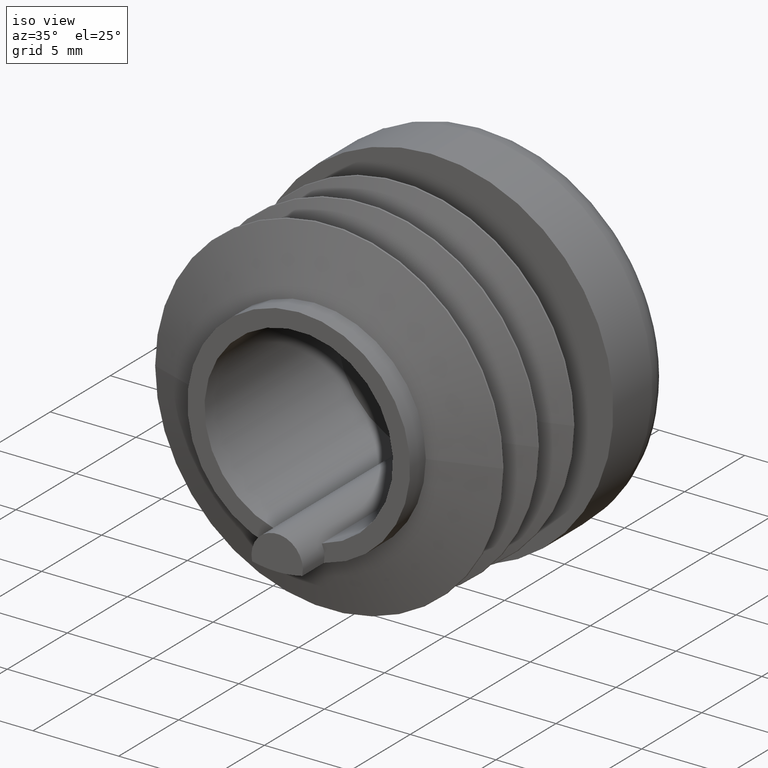
[diagram: clean part render]
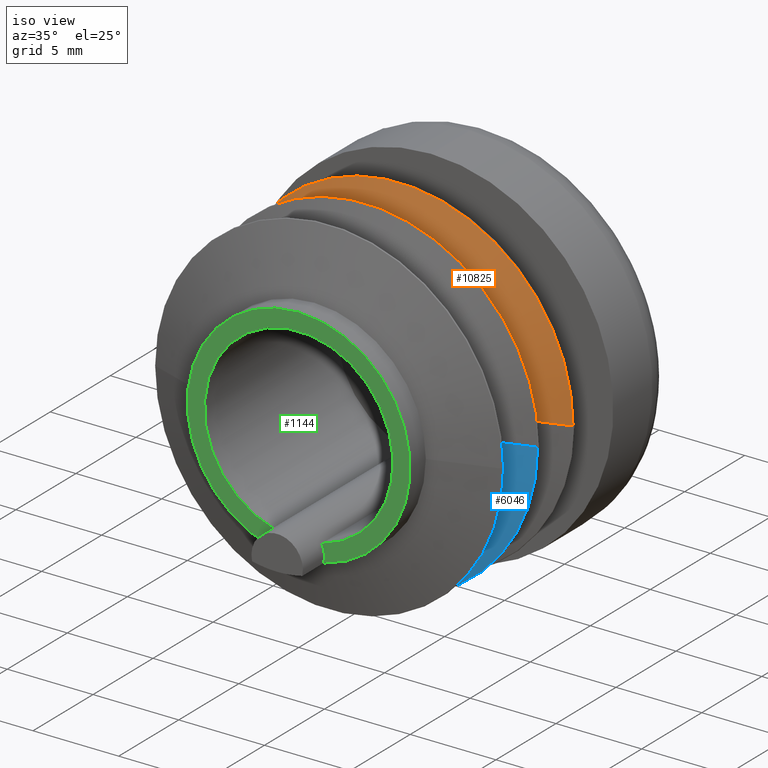
[diagram: same view with three faces highlighted in distinct colors, each labeled with its STEP entity id]
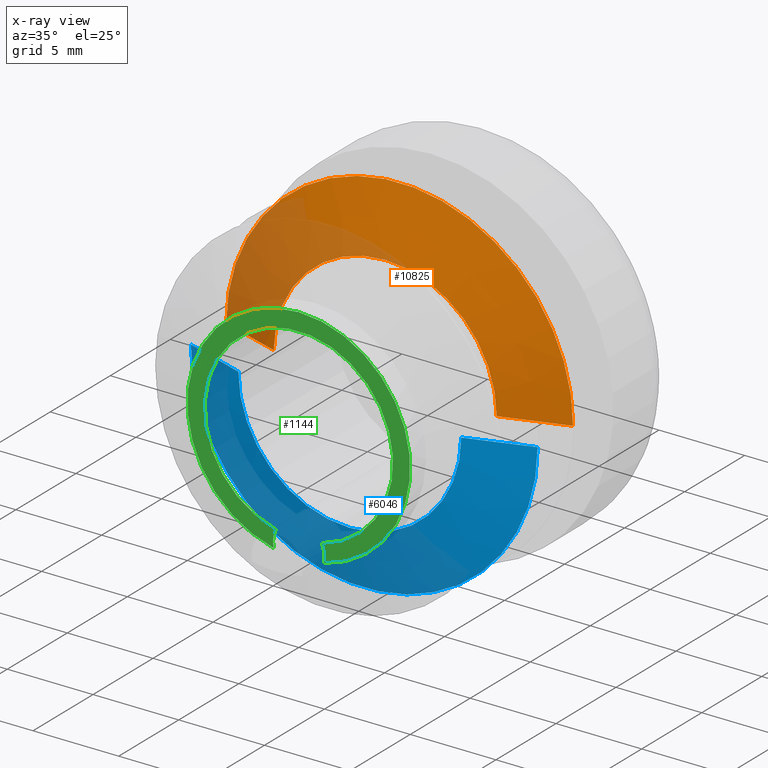
[diagram: x-ray of the same camera — body ghosted, the three highlighted faces saturated]
A machine part, iso view with three faces highlighted in distinct colors.
The next image is the same camera in x-ray (body ghosted, the three faces saturated) — at least one of them is partly hidden behind the body in this view.
Their STEP definitions:

[orange] entity #10825 — the highlighted conical surface has half-angle 71.604 deg.
#49 = EDGE_CURVE ( 'NONE', #6304, #2895, #9470, .T. ) ;
#243 = CIRCLE ( 'NONE', #8916, 6.499999999999999112 ) ;
#464 = ORIENTED_EDGE ( 'NONE', *, *, #9713, .T. ) ;
#1099 = ORIENTED_EDGE ( 'NONE', *, *, #10141, .T. ) ;
#1305 = VECTOR ( 'NONE', #4127, 1000.000000000000000 ) ;
#1764 = AXIS2_PLACEMENT_3D ( 'NONE', #4187, #3212, #5120 ) ;
#1971 = CARTESIAN_POINT ( 'NONE',  ( -7.541599691901261449E-14, 7.200000000000088107, 0.000000000000000000 ) ) ;
#1977 = CARTESIAN_POINT ( 'NONE',  ( 10.11577944472650792, 8.402555199187872859, 1.238825691786501583E-15 ) ) ;
#2106 = CARTESIAN_POINT ( 'NONE',  ( -8.801209402969033617E-14, 8.402555199187768054, 0.000000000000000000 ) ) ;
#2170 = AXIS2_PLACEMENT_3D ( 'NONE', #1971, #8227, #5613 ) ;
#2449 = EDGE_LOOP ( 'NONE', ( #5340, #1099, #8006, #4076, #464 ) ) ;
#2548 = CARTESIAN_POINT ( 'NONE',  ( -10.11577944472668200, 8.402555199187661472, 0.000000000000000000 ) ) ;
#2713 = DIRECTION ( 'NONE',  ( 1.000000000000000000, 1.046069980200573939E-14, 0.000000000000000000 ) ) ;
#2895 = VERTEX_POINT ( 'NONE', #3602 ) ;
#2972 = DIRECTION ( 'NONE',  ( -1.047444401652940164E-14, 1.000000000000000000, 0.000000000000000000 ) ) ;
#3003 = DIRECTION ( 'NONE',  ( 0.9488960162468903503, 0.3155888945301800197, 1.162062469020433147E-16 ) ) ;
#3212 = DIRECTION ( 'NONE',  ( -1.047444401652940164E-14, 1.000000000000000000, 0.000000000000000000 ) ) ;
#3223 = CARTESIAN_POINT ( 'NONE',  ( -6.500000000000150102, 7.200000000000045475, 0.000000000000000000 ) ) ;
#3602 = CARTESIAN_POINT ( 'NONE',  ( 6.499999999999923617, 7.200000000000155609, 1.017423055616140319E-15 ) ) ;
#3617 = CONICAL_SURFACE ( 'NONE', #1764, 6.500000000000074607, 1.249719126558173077 ) ;
#4076 = ORIENTED_EDGE ( 'NONE', *, *, #4111, .F. ) ;
#4111 = EDGE_CURVE ( 'NONE', #10255, #10398, #8905, .T. ) ;
#4127 = DIRECTION ( 'NONE',  ( -0.9488960162468970116, 0.3155888945301601467, 0.000000000000000000 ) ) ;
#4187 = CARTESIAN_POINT ( 'NONE',  ( -7.541599691901287954E-14, 7.200000000000113864, 0.000000000000000000 ) ) ;
#4803 = CIRCLE ( 'NONE', #8824, 10.11577944472659674 ) ;
#5120 = DIRECTION ( 'NONE',  ( -1.000000000000000000, -1.040834085586072266E-14, 0.000000000000000000 ) ) ;
#5340 = ORIENTED_EDGE ( 'NONE', *, *, #49, .T. ) ;
#5613 = DIRECTION ( 'NONE',  ( -1.000000000000000000, -1.040834085586084414E-14, 0.000000000000000000 ) ) ;
#5701 = FACE_OUTER_BOUND ( 'NONE', #2449, .T. ) ;
#6304 = VERTEX_POINT ( 'NONE', #8682 ) ;
#6596 = EDGE_CURVE ( 'NONE', #7333, #10398, #4803, .T. ) ;
#7229 = DIRECTION ( 'NONE',  ( 1.047444401652940164E-14, -1.000000000000000000, -0.000000000000000000 ) ) ;
#7333 = VERTEX_POINT ( 'NONE', #1977 ) ;
#7736 = CARTESIAN_POINT ( 'NONE',  ( -6.500000000000074607, 7.200000000000020606, 0.000000000000000000 ) ) ;
#8006 = ORIENTED_EDGE ( 'NONE', *, *, #6596, .T. ) ;
#8227 = DIRECTION ( 'NONE',  ( -1.047444401652940164E-14, 1.000000000000000000, 0.000000000000000000 ) ) ;
#8354 = CARTESIAN_POINT ( 'NONE',  ( -7.541599691901261449E-14, 7.200000000000088107, 0.000000000000000000 ) ) ;
#8682 = CARTESIAN_POINT ( 'NONE',  ( 7.960204194450690798E-16, 7.200000000000088107, 6.499999999999999112 ) ) ;
#8798 = VECTOR ( 'NONE', #3003, 1000.000000000000227 ) ;
#8824 = AXIS2_PLACEMENT_3D ( 'NONE', #2106, #7229, #2713 ) ;
#8905 = LINE ( 'NONE', #3223, #1305 ) ;
#8916 = AXIS2_PLACEMENT_3D ( 'NONE', #8354, #2972, #10231 ) ;
#9470 = CIRCLE ( 'NONE', #2170, 6.499999999999999112 ) ;
#9713 = EDGE_CURVE ( 'NONE', #10255, #6304, #243, .T. ) ;
#10138 = CARTESIAN_POINT ( 'NONE',  ( 6.499999999999999112, 7.200000000000181366, 7.960204194457887182E-16 ) ) ;
#10141 = EDGE_CURVE ( 'NONE', #2895, #7333, #10222, .T. ) ;
#10222 = LINE ( 'NONE', #10138, #8798 ) ;
#10231 = DIRECTION ( 'NONE',  ( -1.000000000000000000, -1.040834085586084414E-14, 0.000000000000000000 ) ) ;
#10255 = VERTEX_POINT ( 'NONE', #7736 ) ;
#10398 = VERTEX_POINT ( 'NONE', #2548 ) ;
#10825 = ADVANCED_FACE ( 'NONE', ( #5701 ), #3617, .T. ) ;

[blue] entity #6046 — the highlighted conical surface has half-angle 71.604 deg.
#54 = ORIENTED_EDGE ( 'NONE', *, *, #5526, .T. ) ;
#665 = VERTEX_POINT ( 'NONE', #5502 ) ;
#880 = DIRECTION ( 'NONE',  ( -1.000000000000000000, -1.040834085586084414E-14, 0.000000000000000000 ) ) ;
#1195 = DIRECTION ( 'NONE',  ( 1.047444401652940164E-14, -1.000000000000000000, -0.000000000000000000 ) ) ;
#1271 = FACE_OUTER_BOUND ( 'NONE', #2267, .T. ) ;
#1295 = VERTEX_POINT ( 'NONE', #9670 ) ;
#1876 = CIRCLE ( 'NONE', #10856, 10.11577944472659674 ) ;
#1985 = EDGE_CURVE ( 'NONE', #7666, #1295, #1876, .T. ) ;
#2267 = EDGE_LOOP ( 'NONE', ( #4062, #7797, #5302, #54, #5414 ) ) ;
#2823 = AXIS2_PLACEMENT_3D ( 'NONE', #10046, #4592, #9920 ) ;
#3125 = CIRCLE ( 'NONE', #2823, 6.499999999999999112 ) ;
#3765 = DIRECTION ( 'NONE',  ( -1.047444401652940164E-14, 1.000000000000000000, 0.000000000000000000 ) ) ;
#4062 = ORIENTED_EDGE ( 'NONE', *, *, #5498, .F. ) ;
#4430 = EDGE_CURVE ( 'NONE', #8213, #7742, #9306, .T. ) ;
#4434 = DIRECTION ( 'NONE',  ( -1.047444401652940164E-14, 1.000000000000000000, 0.000000000000000000 ) ) ;
#4592 = DIRECTION ( 'NONE',  ( -1.047444401652940164E-14, 1.000000000000000000, 0.000000000000000000 ) ) ;
#5302 = ORIENTED_EDGE ( 'NONE', *, *, #5979, .T. ) ;
#5414 = ORIENTED_EDGE ( 'NONE', *, *, #1985, .T. ) ;
#5436 = AXIS2_PLACEMENT_3D ( 'NONE', #7220, #3765, #6407 ) ;
#5484 = DIRECTION ( 'NONE',  ( 0.9488960162468905724, 0.3155888945301795756, 1.162062469020433393E-16 ) ) ;
#5498 = EDGE_CURVE ( 'NONE', #8213, #1295, #8187, .T. ) ;
#5502 = CARTESIAN_POINT ( 'NONE',  ( -6.500000000000042633, 4.249999999999929834, 0.000000000000000000 ) ) ;
#5526 = EDGE_CURVE ( 'NONE', #665, #7666, #10567, .T. ) ;
#5979 = EDGE_CURVE ( 'NONE', #7742, #665, #3125, .T. ) ;
#6046 = ADVANCED_FACE ( 'NONE', ( #1271 ), #10551, .T. ) ;
#6374 = CARTESIAN_POINT ( 'NONE',  ( -6.500000000000118128, 4.249999999999955591, 0.000000000000000000 ) ) ;
#6407 = DIRECTION ( 'NONE',  ( -1.000000000000000000, -1.040834085586072266E-14, 0.000000000000000000 ) ) ;
#7220 = CARTESIAN_POINT ( 'NONE',  ( -4.451638707025019325E-14, 4.250000000000023093, 0.000000000000000000 ) ) ;
#7666 = VERTEX_POINT ( 'NONE', #8182 ) ;
#7742 = VERTEX_POINT ( 'NONE', #8295 ) ;
#7797 = ORIENTED_EDGE ( 'NONE', *, *, #4430, .T. ) ;
#8182 = CARTESIAN_POINT ( 'NONE',  ( -10.11577944472665180, 5.452555199187569812, 0.000000000000000000 ) ) ;
#8187 = LINE ( 'NONE', #10886, #10858 ) ;
#8213 = VERTEX_POINT ( 'NONE', #10204 ) ;
#8295 = CARTESIAN_POINT ( 'NONE',  ( -7.087422195345027939E-28, 4.249999999999997335, -6.499999999999999112 ) ) ;
#8890 = CARTESIAN_POINT ( 'NONE',  ( -4.451638707024992819E-14, 4.249999999999997335, 0.000000000000000000 ) ) ;
#9306 = CIRCLE ( 'NONE', #10939, 6.499999999999999112 ) ;
#9670 = CARTESIAN_POINT ( 'NONE',  ( 10.11577944472653989, 5.452555199187781199, 1.238825691786501780E-15 ) ) ;
#9920 = DIRECTION ( 'NONE',  ( -1.000000000000000000, -1.040834085586084414E-14, 0.000000000000000000 ) ) ;
#10007 = VECTOR ( 'NONE', #10923, 1000.000000000000114 ) ;
#10046 = CARTESIAN_POINT ( 'NONE',  ( -4.451638707024992819E-14, 4.249999999999997335, 0.000000000000000000 ) ) ;
#10161 = CARTESIAN_POINT ( 'NONE',  ( -5.711248418092762463E-14, 5.452555199187675505, 0.000000000000000000 ) ) ;
#10204 = CARTESIAN_POINT ( 'NONE',  ( 6.499999999999954703, 4.250000000000065725, 1.017423055616140516E-15 ) ) ;
#10205 = DIRECTION ( 'NONE',  ( 1.000000000000000000, 1.046069980200573939E-14, 0.000000000000000000 ) ) ;
#10551 = CONICAL_SURFACE ( 'NONE', #5436, 6.500000000000074607, 1.249719126558173521 ) ;
#10567 = LINE ( 'NONE', #6374, #10007 ) ;
#10856 = AXIS2_PLACEMENT_3D ( 'NONE', #10161, #1195, #10205 ) ;
#10858 = VECTOR ( 'NONE', #5484, 1000.000000000000000 ) ;
#10886 = CARTESIAN_POINT ( 'NONE',  ( 6.500000000000030198, 4.250000000000090594, 7.960204194457887182E-16 ) ) ;
#10923 = DIRECTION ( 'NONE',  ( -0.9488960162468971227, 0.3155888945301596471, 0.000000000000000000 ) ) ;
#10939 = AXIS2_PLACEMENT_3D ( 'NONE', #8890, #4434, #880 ) ;

[green] entity #1144 — the highlighted planar face has unit normal (0, -1, -0).
#19 = DIRECTION ( 'NONE',  ( 0.000000000000000000, 0.000000000000000000, -1.000000000000000000 ) ) ;
#30 = CARTESIAN_POINT ( 'NONE',  ( -1.343709624716427742, 0.000000000000000000, -5.333333333333332149 ) ) ;
#266 = ORIENTED_EDGE ( 'NONE', *, *, #6633, .T. ) ;
#387 = DIRECTION ( 'NONE',  ( 0.000000000000000000, 0.000000000000000000, -1.000000000000000000 ) ) ;
#524 = CIRCLE ( 'NONE', #8466, 5.500000000000000000 ) ;
#1144 = ADVANCED_FACE ( 'NONE', ( #8925 ), #7698, .T. ) ;
#1244 = CARTESIAN_POINT ( 'NONE',  ( 0.000000000000000000, 0.000000000000000000, 0.000000000000000000 ) ) ;
#2065 = CARTESIAN_POINT ( 'NONE',  ( 0.000000000000000000, 0.000000000000000000, -6.000000000000000000 ) ) ;
#2108 = CIRCLE ( 'NONE', #5205, 6.500000000000000000 ) ;
#2117 = DIRECTION ( 'NONE',  ( -0.000000000000000000, -1.000000000000000000, -0.000000000000000000 ) ) ;
#2142 = DIRECTION ( 'NONE',  ( 0.000000000000000000, -1.000000000000000000, 0.000000000000000000 ) ) ;
#3621 = CARTESIAN_POINT ( 'NONE',  ( 0.000000000000000000, 0.000000000000000000, 0.000000000000000000 ) ) ;
#3888 = DIRECTION ( 'NONE',  ( 0.000000000000000000, 0.000000000000000000, -1.000000000000000000 ) ) ;
#4435 = CARTESIAN_POINT ( 'NONE',  ( 0.000000000000000000, 0.000000000000000000, 0.000000000000000000 ) ) ;
#4447 = DIRECTION ( 'NONE',  ( 0.000000000000000000, 0.000000000000000000, -1.000000000000000000 ) ) ;
#4485 = CIRCLE ( 'NONE', #8172, 1.500000000000003109 ) ;
#4507 = DIRECTION ( 'NONE',  ( 0.000000000000000000, -1.000000000000000000, 0.000000000000000000 ) ) ;
#4535 = ORIENTED_EDGE ( 'NONE', *, *, #8341, .F. ) ;
#4561 = ORIENTED_EDGE ( 'NONE', *, *, #7711, .T. ) ;
#4802 = VERTEX_POINT ( 'NONE', #5004 ) ;
#5004 = CARTESIAN_POINT ( 'NONE',  ( 1.343709624716427742, 0.000000000000000000, -5.333333333333332149 ) ) ;
#5205 = AXIS2_PLACEMENT_3D ( 'NONE', #3621, #9848, #4447 ) ;
#6002 = DIRECTION ( 'NONE',  ( 0.000000000000000000, -1.000000000000000000, -0.000000000000000000 ) ) ;
#6025 = CIRCLE ( 'NONE', #8977, 6.500000000000000000 ) ;
#6180 = DIRECTION ( 'NONE',  ( -0.000000000000000000, -1.000000000000000000, -0.000000000000000000 ) ) ;
#6190 = ORIENTED_EDGE ( 'NONE', *, *, #9508, .F. ) ;
#6271 = CARTESIAN_POINT ( 'NONE',  ( 7.960204194457796463E-16, 0.000000000000000000, 6.500000000000000888 ) ) ;
#6633 = EDGE_CURVE ( 'NONE', #9600, #10577, #2108, .T. ) ;
#7142 = CARTESIAN_POINT ( 'NONE',  ( 0.000000000000000000, 0.000000000000000000, -6.000000000000000000 ) ) ;
#7698 = PLANE ( 'NONE',  #10698 ) ;
#7711 = EDGE_CURVE ( 'NONE', #7795, #9600, #6025, .T. ) ;
#7786 = AXIS2_PLACEMENT_3D ( 'NONE', #2065, #2142, #3888 ) ;
#7795 = VERTEX_POINT ( 'NONE', #11010 ) ;
#8063 = VERTEX_POINT ( 'NONE', #30 ) ;
#8172 = AXIS2_PLACEMENT_3D ( 'NONE', #7142, #4507, #19 ) ;
#8178 = EDGE_CURVE ( 'NONE', #8063, #10577, #9968, .T. ) ;
#8328 = CARTESIAN_POINT ( 'NONE',  ( -1.462494064565356577, 0.000000000000000000, -6.333333333333332149 ) ) ;
#8341 = EDGE_CURVE ( 'NONE', #7795, #4802, #4485, .T. ) ;
#8466 = AXIS2_PLACEMENT_3D ( 'NONE', #4435, #6180, #8854 ) ;
#8854 = DIRECTION ( 'NONE',  ( 0.000000000000000000, 0.000000000000000000, -1.000000000000000000 ) ) ;
#8925 = FACE_OUTER_BOUND ( 'NONE', #10581, .T. ) ;
#8977 = AXIS2_PLACEMENT_3D ( 'NONE', #1244, #2117, #387 ) ;
#9180 = ORIENTED_EDGE ( 'NONE', *, *, #8178, .F. ) ;
#9508 = EDGE_CURVE ( 'NONE', #4802, #8063, #524, .T. ) ;
#9600 = VERTEX_POINT ( 'NONE', #6271 ) ;
#9848 = DIRECTION ( 'NONE',  ( -0.000000000000000000, -1.000000000000000000, -0.000000000000000000 ) ) ;
#9968 = CIRCLE ( 'NONE', #7786, 1.500000000000003109 ) ;
#10370 = CARTESIAN_POINT ( 'NONE',  ( 6.500000000000000000, 3.061616997868375006E-17, 0.000000000000000000 ) ) ;
#10520 = DIRECTION ( 'NONE',  ( 0.000000000000000000, 0.000000000000000000, -1.000000000000000000 ) ) ;
#10577 = VERTEX_POINT ( 'NONE', #8328 ) ;
#10581 = EDGE_LOOP ( 'NONE', ( #4535, #4561, #266, #9180, #6190 ) ) ;
#10698 = AXIS2_PLACEMENT_3D ( 'NONE', #10370, #6002, #10520 ) ;
#11010 = CARTESIAN_POINT ( 'NONE',  ( 1.462494064565357021, 0.000000000000000000, -6.333333333333333925 ) ) ;